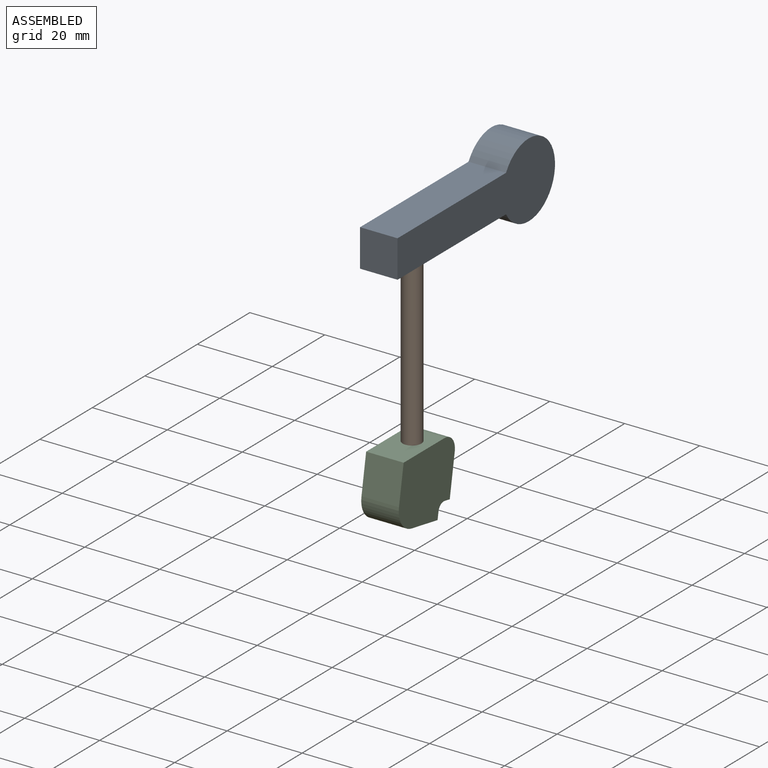
[diagram: assembled view]
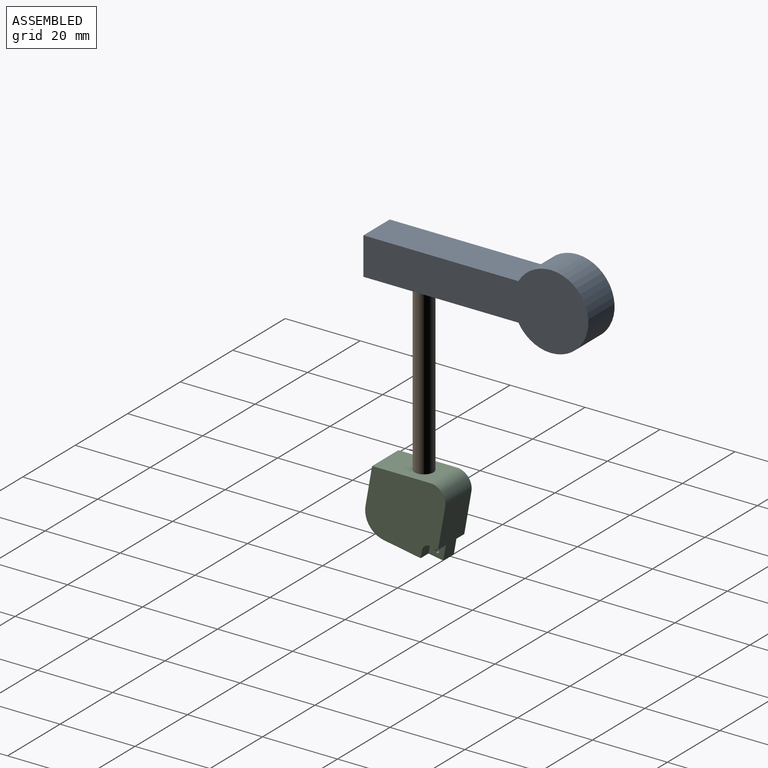
[diagram: assembled view, second angle]
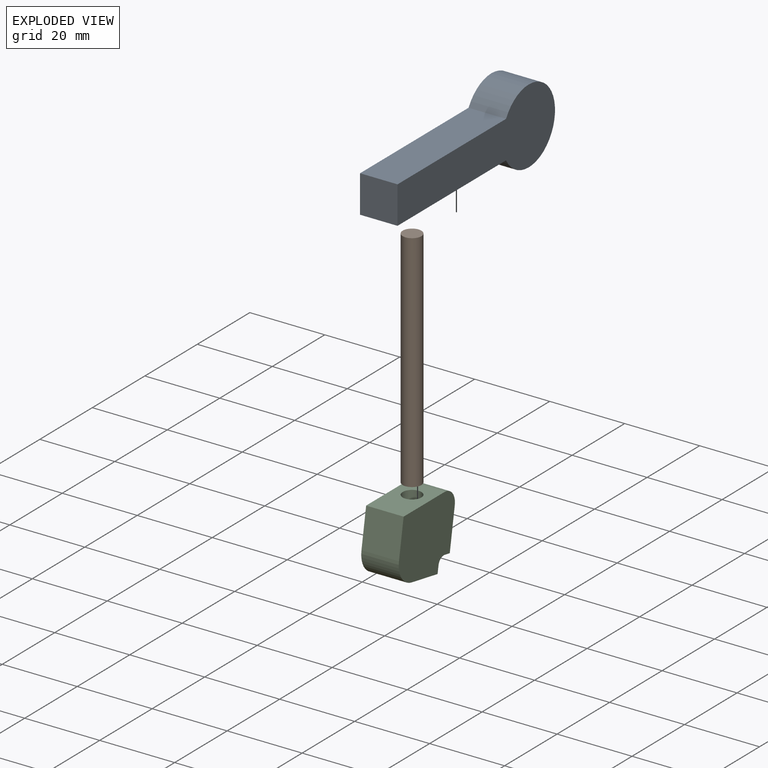
[diagram: exploded view]
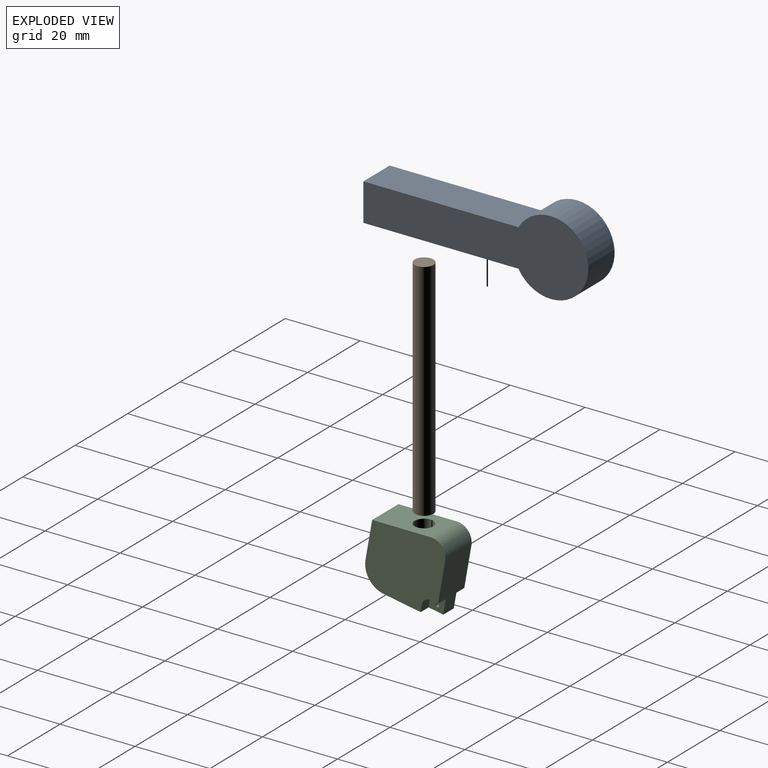
[diagram: exploded view, second angle]
ASSEMBLY  parts=3 mates=2
PART A: 8 faces, bbox 10x60x20 mm
  f0: plane 41.34x10mm, normal (0,0,1), area 413.4mm2, adj f1,f3,f4,f5
  f1: cylinder r=10mm len=20mm, axis (1,0,0), area 523.6mm2, adj f0,f2,f4,f5
  f2: plane 41.34x10mm, normal (0,0,-1), area 393.8mm2, adj f1,f3,f4,f5,f6
  f3: plane 10x10mm, normal (0,-1,0), area 100mm2, adj f0,f2,f4,f5
  f4: plane 60x20mm, normal (-1,0,0), area 718.5mm2, adj f0,f1,f2,f3
  f5: plane 60x20mm, normal (1,0,0), area 718.5mm2, adj f0,f1,f2,f3
  f6: cylinder r=2.5mm len=5mm, axis (0,0,-1), area 78.5mm2, adj f2,f7
  f7: plane 5x5mm, normal (0,0,-1), area 19.6mm2, adj f6
PART B: 3 faces, bbox 5x5x60 mm
  f0: cylinder r=2.5mm len=60mm, axis (0,0,-1), area 942.5mm2, adj f1,f2
  f1: plane 5x5mm, normal (0,0,1), area 19.6mm2, adj f0
  f2: plane 5x5mm, normal (0,0,-1), area 19.6mm2, adj f0
PART C: 19 faces, bbox 10x21.4x19.5 mm
  f0: plane 3x1.97mm, normal (0,-0.17,-0.98), area 6mm2, adj f2,f3,f13,f15
  f1: plane 3x1.97mm, normal (0,0.98,-0.17), area 6mm2, adj f2,f7,f13,f15
  f2: cylinder r=2mm len=3mm, axis (1,0,0), area 9.4mm2, adj f0,f1,f13,f15
  f3: plane 14.77x10mm, normal (0,0.98,-0.17), area 126mm2, adj f0,f4,f7,f11,f12,f13,f14,f15
  f4: plane 3x1.97mm, normal (0,-0.17,-0.98), area 6mm2, adj f3,f5,f12,f14
  f5: cylinder r=2mm len=3mm, axis (1,0,0), area 9.4mm2, adj f4,f6,f12,f14
  f6: plane 3x1.97mm, normal (0,0.98,-0.17), area 6mm2, adj f5,f7,f12,f14
  f7: plane 13.79x10mm, normal (0,-0.17,-0.98), area 116mm2, adj f1,f3,f6,f8,f12,f13,f14,f15
  f8: cylinder r=6mm len=10mm, axis (1,0,0), area 94.2mm2, adj f7,f9,f12,f13
  f9: plane 10.08x10mm, normal (0,-0.98,0.17), area 102.4mm2, adj f8,f10,f12,f13
  f10: plane 15.35x10mm, normal (0,0,1), area 133.9mm2, adj f9,f11,f12,f13,f17
  f11: cylinder r=4mm len=10mm, axis (1,0,0), area 71.7mm2, adj f3,f10,f12,f13
  f12: plane 21.41x18.77mm, normal (-1,0,0), area 332mm2, adj f3,f4,f5,f6,f7,f8,f9,f10
  f13: plane 21.41x18.77mm, normal (1,0,0), area 332mm2, adj f0,f1,f2,f3,f7,f8,f9,f10
  f14: plane 4.63x4.32mm, normal (-1,0,0), area 14.4mm2, adj f3,f4,f5,f6,f7,f16
  f15: plane 4.63x4.32mm, normal (1,0,0), area 14.4mm2, adj f0,f1,f2,f3,f7,f16
  f16: cylinder r=0.5mm len=4mm, axis (-1,0,0), area 12.6mm2, adj f14,f15
  f17: cylinder r=2.5mm len=10mm, axis (0,0,1), area 157.1mm2, adj f10,f18
  f18: plane 5x5mm, normal (0,0,1), area 19.6mm2, adj f17
PLACE A at identity
PLACE B at identity
PLACE C at identity fixed
MATE fastened A.f6 <-> B.f0  axis (0,0,-1) through (-5,357.59,259.59)mm
MATE fastened B.f0 <-> C.f17  axis (0,0,-1) through (-5,357.59,199.59)mm
